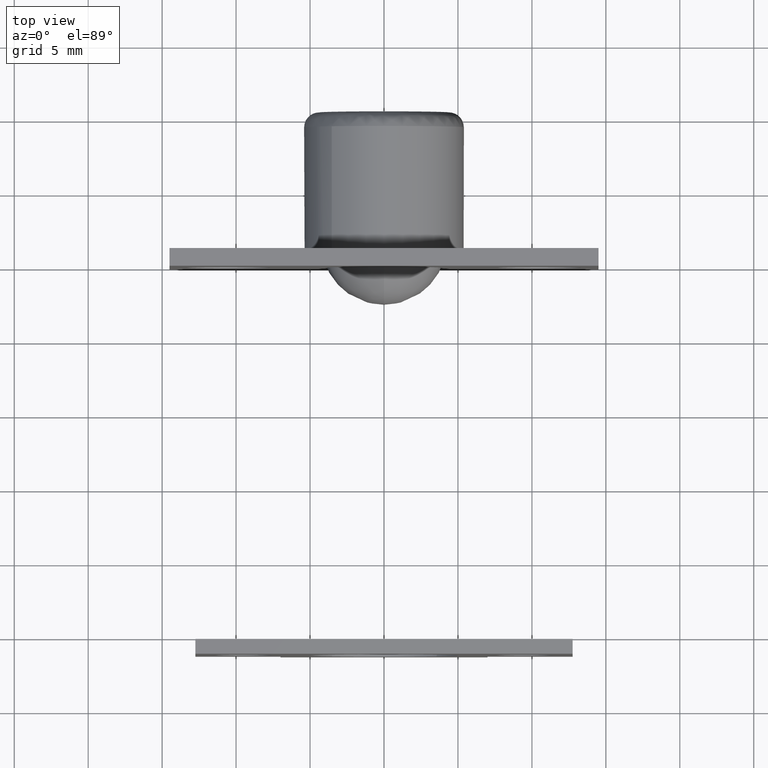
[diagram: clean part render]
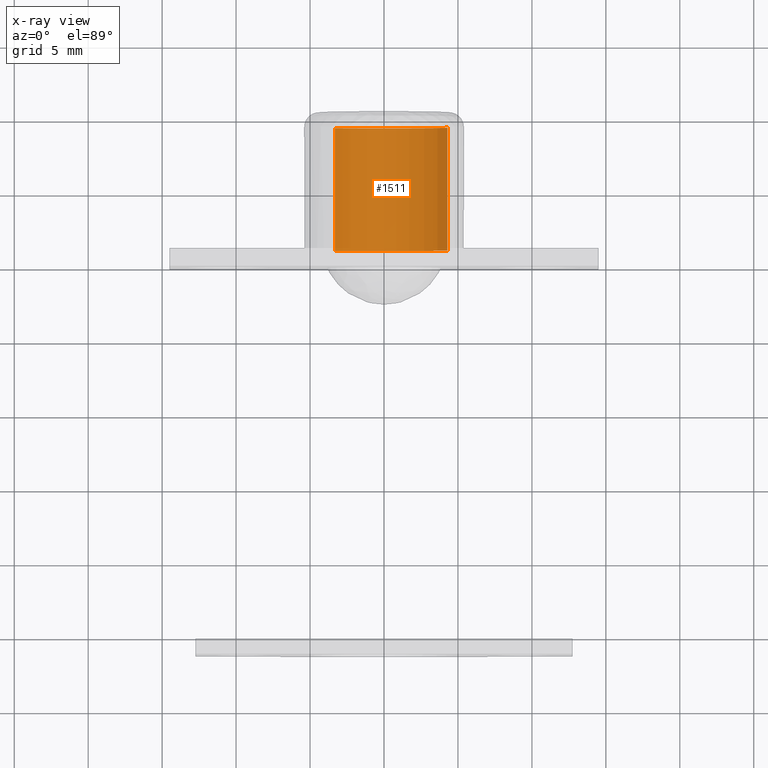
[diagram: x-ray — body ghosted, one internal face saturated and labeled with its STEP entity id]
A machine part, top view, then the same camera in x-ray: the body is ghosted and one INTERNAL B-rep face — a face not visible from any outside direction — is saturated and labeled: STEP entity #1511.
In plain terms, the highlighted face is a freeform B-spline surface patch.
Its self-contained STEP definition (entity closure, byte-faithful):
#1417=CARTESIAN_POINT('',(4.287238369417765,0.992496924908354,-2.372677172266193));
#1418=CARTESIAN_POINT('',(4.005602303504947,0.992496924908353,-2.881571075788708));
#1419=CARTESIAN_POINT('',(3.612659687646943,0.992496924908353,-3.310392692906945));
#1420=CARTESIAN_POINT('',(0.302266994740001,0.992496924908353,-6.923052380553887));
#1421=CARTESIAN_POINT('',(-3.310392692906942,0.992496924908353,-3.612659687646946));
#1422=CARTESIAN_POINT('',(4.287238369417765,9.712687580634782,-2.372677172266193));
#1423=CARTESIAN_POINT('',(4.005602303504947,9.712687580634784,-2.881571075788708));
#1424=CARTESIAN_POINT('',(3.612659687646943,9.712687580634784,-3.310392692906945));
#1425=CARTESIAN_POINT('',(0.302266994740001,9.712687580634784,-6.923052380553887));
#1426=CARTESIAN_POINT('',(-3.310392692906942,9.712687580634784,-3.612659687646946));
#1434=(BOUNDED_SURFACE()B_SPLINE_SURFACE(2,1,((#1417,#1422),(#1418,#1423),(#1419,#1424),(#1420,#1425),(#1421,#1426)),.UNSPECIFIED.,.F.,.F.,.U.)B_SPLINE_SURFACE_WITH_KNOTS((3,2,3),(2,2),(0.0,1.298973996698708,9.417561476065618),(0.0,8.720190655726430),.UNSPECIFIED.)GEOMETRIC_REPRESENTATION_ITEM()RATIONAL_B_SPLINE_SURFACE(((0.921270302782944,0.921270302782944),(0.953137084989848,0.953137084989848),(1.0,1.0),(0.707106781186548,0.707106781186548),(1.0,1.0)))REPRESENTATION_ITEM('')SURFACE());
#1435=CARTESIAN_POINT('',(4.287238369405666,9.500000000000000,-2.372677172288058));
#1436=VERTEX_POINT('',#1435);
#1437=CARTESIAN_POINT('',(0.0,9.500000000000000,-4.900001000000003));
#1438=VERTEX_POINT('',#1437);
#1439=CARTESIAN_POINT('',(4.287238369405666,9.500000000000000,-2.372677172288058));
#1440=CARTESIAN_POINT('',(2.888546942342499,9.500000000000000,-4.900001000000004));
#1441=CARTESIAN_POINT('',(0.0,9.500000000000000,-4.900001000000003));
#1449=(BOUNDED_CURVE()B_SPLINE_CURVE(2,(#1439,#1440,#1441),.UNSPECIFIED.,.F.,.U.)B_SPLINE_CURVE_WITH_KNOTS((3,3),(0.332484288972211,0.500000000000000),.UNSPECIFIED.)CURVE()GEOMETRIC_REPRESENTATION_ITEM()RATIONAL_B_SPLINE_CURVE((0.870495137451706,0.803743136780986,1.0))REPRESENTATION_ITEM(''));
#1450=EDGE_CURVE('',#1436,#1438,#1449,.T.);
#1451=ORIENTED_EDGE('',*,*,#1450,.T.);
#1452=CARTESIAN_POINT('',(-3.310392327927046,9.500000000951959,-3.612660022063731));
#1453=VERTEX_POINT('',#1452);
#1454=CARTESIAN_POINT('',(0.0,9.500000000000000,-4.900001000000003));
#1455=CARTESIAN_POINT('',(-1.905505605057623,9.500000000000000,-4.900001000000003));
#1456=CARTESIAN_POINT('',(-3.310392327927046,9.500000000951959,-3.612660022063731));
#1464=(BOUNDED_CURVE()B_SPLINE_CURVE(2,(#1454,#1455,#1456),.UNSPECIFIED.,.F.,.U.)B_SPLINE_CURVE_WITH_KNOTS((3,3),(0.500000000000000,0.618415178581626),.UNSPECIFIED.)CURVE()GEOMETRIC_REPRESENTATION_ITEM()RATIONAL_B_SPLINE_CURVE((1.0,0.861267988755431,0.853959784602972))REPRESENTATION_ITEM(''));
#1465=EDGE_CURVE('',#1438,#1453,#1464,.T.);
#1466=ORIENTED_EDGE('',*,*,#1465,.T.);
#1467=CARTESIAN_POINT('',(-3.310391967039543,1.199997000000000,-3.612660352781606));
#1468=VERTEX_POINT('',#1467);
#1469=CARTESIAN_POINT('',(-3.310391967039543,1.199997000000000,-3.612660352781606));
#1470=CARTESIAN_POINT('',(-3.310392327927046,9.500000000951959,-3.612660022063731));
#1471=QUASI_UNIFORM_CURVE('',1,(#1469,#1470),.UNSPECIFIED.,.F.,.U.);
#1472=EDGE_CURVE('',#1468,#1453,#1471,.T.);
#1473=ORIENTED_EDGE('',*,*,#1472,.F.);
#1474=CARTESIAN_POINT('',(0.0,1.199997000000000,-4.900001000000003));
#1475=VERTEX_POINT('',#1474);
#1476=CARTESIAN_POINT('',(0.0,1.199997000000000,-4.900001000000003));
#1477=CARTESIAN_POINT('',(-1.905505041548143,1.199997000000000,-4.900001000000003));
#1478=CARTESIAN_POINT('',(-3.310391967039543,1.199997000000000,-3.612660352781605));
#1486=(BOUNDED_CURVE()B_SPLINE_CURVE(2,(#1476,#1477,#1478),.UNSPECIFIED.,.F.,.U.)B_SPLINE_CURVE_WITH_KNOTS((3,3),(0.500000000000000,0.618415148421254),.UNSPECIFIED.)CURVE()GEOMETRIC_REPRESENTATION_ITEM()RATIONAL_B_SPLINE_CURVE((1.0,0.861268024090505,0.853959788325783))REPRESENTATION_ITEM(''));
#1487=EDGE_CURVE('',#1475,#1468,#1486,.T.);
#1488=ORIENTED_EDGE('',*,*,#1487,.F.);
#1489=CARTESIAN_POINT('',(4.287238369405683,1.199997000000000,-2.372677172288026));
#1490=VERTEX_POINT('',#1489);
#1491=CARTESIAN_POINT('',(4.287238369405683,1.199997000000001,-2.372677172288026));
#1492=CARTESIAN_POINT('',(2.888546942342547,1.199997000000000,-4.900001000000003));
#1493=CARTESIAN_POINT('',(0.0,1.199997000000000,-4.900001000000003));
#1501=(BOUNDED_CURVE()B_SPLINE_CURVE(2,(#1491,#1492,#1493),.UNSPECIFIED.,.F.,.U.)B_SPLINE_CURVE_WITH_KNOTS((3,3),(0.332484288972208,0.500000000000000),.UNSPECIFIED.)CURVE()GEOMETRIC_REPRESENTATION_ITEM()RATIONAL_B_SPLINE_CURVE((0.870495137451708,0.803743136780984,1.0))REPRESENTATION_ITEM(''));
#1502=EDGE_CURVE('',#1490,#1475,#1501,.T.);
#1503=ORIENTED_EDGE('',*,*,#1502,.F.);
#1504=CARTESIAN_POINT('',(4.287238369405683,1.199997000000000,-2.372677172288026));
#1505=CARTESIAN_POINT('',(4.287238369405666,9.500000000000000,-2.372677172288058));
#1506=QUASI_UNIFORM_CURVE('',1,(#1504,#1505),.UNSPECIFIED.,.F.,.U.);
#1507=EDGE_CURVE('',#1490,#1436,#1506,.T.);
#1508=ORIENTED_EDGE('',*,*,#1507,.T.);
#1509=EDGE_LOOP('',(#1451,#1466,#1473,#1488,#1503,#1508));
#1510=FACE_OUTER_BOUND('',#1509,.T.);
#1511=ADVANCED_FACE('',(#1510),#1434,.F.);